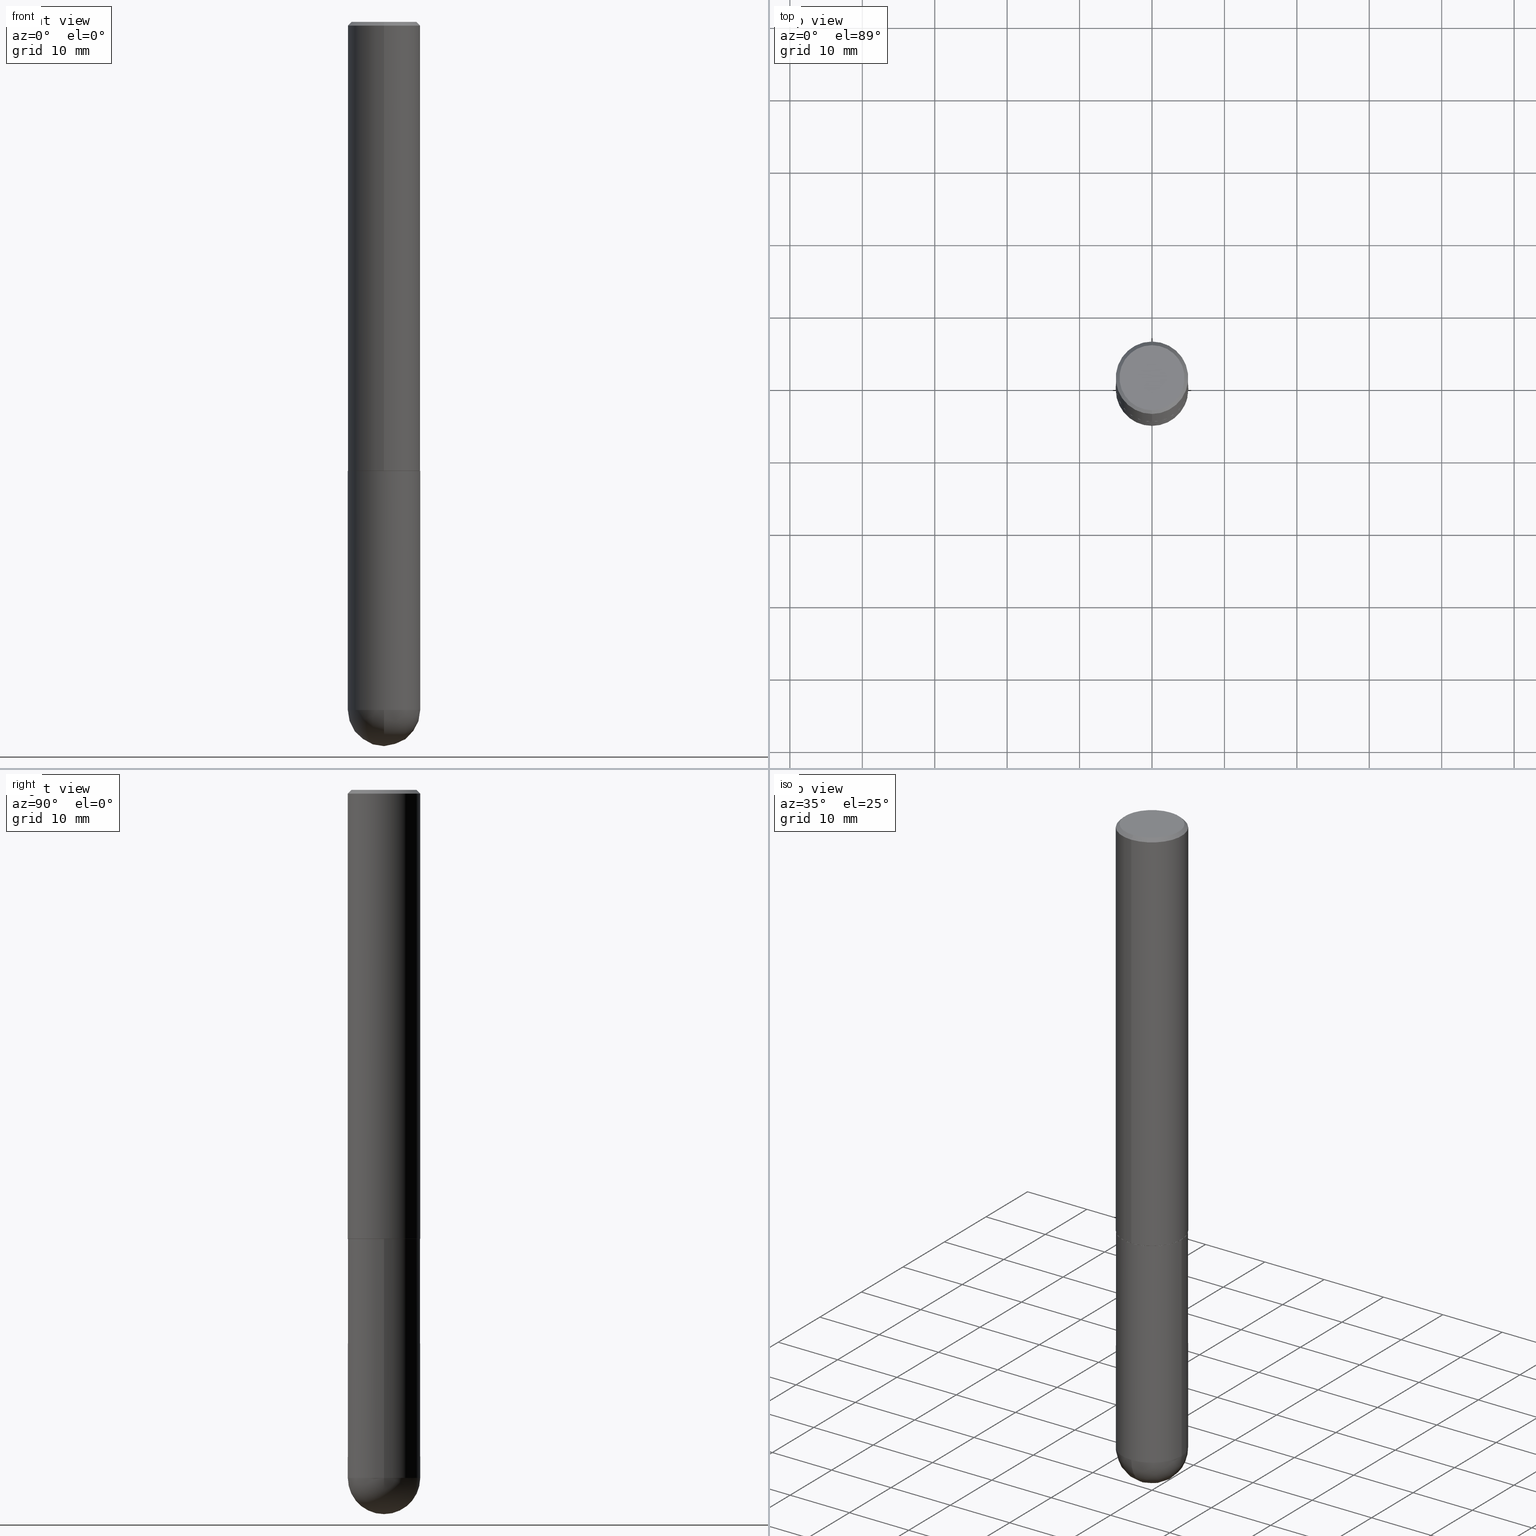
[diagram: canonical four-view strip — front | top / right | iso, engineering-drawing reading convention]
A machine part, canonical four-view strip (front | top / right | iso — engineering-drawing reading convention). The complete STEP part file that produces these views, byte-faithful:
ISO-10303-21;
HEADER;
FILE_DESCRIPTION (( 'STEP AP203' ),
    '1' );
FILE_NAME ('49601.STEP',
    '2024-04-10T12:29:46',
    ( '' ),
    ( '' ),
    'SwSTEP 2.0',
    'SolidWorks 2023',
    '' );
FILE_SCHEMA (( 'CONFIG_CONTROL_DESIGN' ));
ENDSEC;

DATA;
#1 = DATE_TIME_ROLE ( 'classification_date' ) ;
#2 = PERSON_AND_ORGANIZATION_ROLE ( 'design_supplier' ) ;
#3 = PERSON_AND_ORGANIZATION_ROLE ( 'creator' ) ;
#4 = DIRECTION ( 'NONE',  ( -2.444480225679141495E-29, 3.492897042394238758E-15, 1.000000000000000000 ) ) ;
#5 = AXIS2_PLACEMENT_3D ( 'NONE', #78, #106, #140 ) ;
#6 = PRODUCT_DEFINITION_FORMATION_WITH_SPECIFIED_SOURCE ( 'ANY', '', #68, .NOT_KNOWN. ) ;
#7 = CARTESIAN_POINT ( 'NONE',  ( 0.000000000000000000, 0.000000000000000000, 0.000000000000000000 ) ) ;
#8 = CARTESIAN_POINT ( 'NONE',  ( -1.367613240424795443E-15, -0.1958500000000085450, -2.440899999999999181 ) ) ;
#9 = DIRECTION ( 'NONE',  ( -2.444480225679141495E-29, 3.492897042394238758E-15, 1.000000000000000000 ) ) ;
#10 = COORDINATED_UNIVERSAL_TIME_OFFSET ( 5, 0, .BEHIND. ) ;
#11 = EDGE_CURVE ( 'NONE', #60, #61, #139, .T. ) ;
#12 = CARTESIAN_POINT ( 'NONE',  ( -8.144869788625453645E-45, 1.163813529621500407E-30, 3.331943414008428800E-16 ) ) ;
#13 = CARTESIAN_POINT ( 'NONE',  ( 0.000000000000000000, 0.000000000000000000, 0.000000000000000000 ) ) ;
#14 = COORDINATED_UNIVERSAL_TIME_OFFSET ( 5, 0, .BEHIND. ) ;
#15 = EDGE_CURVE ( 'NONE', #23, #303, #208, .T. ) ;
#16 = CONICAL_SURFACE ( 'NONE', #281, 0.1968500000000000527, 0.7853981633974480570 ) ;
#17 = ORIENTED_EDGE ( 'NONE', *, *, #94, .T. ) ;
#18 = DIRECTION ( 'NONE',  ( -6.982962677686265922E-15, -1.000000000000000000, 3.492897042394238758E-15 ) ) ;
#19 = CARTESIAN_POINT ( 'NONE',  ( 1.398703375343789145E-15, 0.1968499999999918093, -2.439900000000000624 ) ) ;
#20 = CIRCLE ( 'NONE', #195, 0.1968500000000003303 ) ;
#21 = AXIS2_PLACEMENT_3D ( 'NONE', #7, #381, #317 ) ;
#22 = DIRECTION ( 'NONE',  ( -6.982962677686265133E-15, -1.000000000000000000, 3.491137977679279029E-15 ) ) ;
#23 = VERTEX_POINT ( 'NONE', #135 ) ;
#24 = CARTESIAN_POINT ( 'NONE',  ( 9.146420155453340551E-29, -1.305866392947419340E-14, -3.740150000000000752 ) ) ;
#25 = ADVANCED_FACE ( 'NONE', ( #228 ), #363, .T. ) ;
#26 = DIRECTION ( 'NONE',  ( -2.444480225679141495E-29, 3.492897042394238758E-15, 1.000000000000000000 ) ) ;
#27 = EDGE_LOOP ( 'NONE', ( #398, #376, #260, #276, #296 ) ) ;
#28 = CIRCLE ( 'NONE', #79, 0.1968500000000000250 ) ;
#29 = AXIS2_PLACEMENT_3D ( 'NONE', #306, #143, #82 ) ;
#30 = CARTESIAN_POINT ( 'NONE',  ( 0.000000000000000000, 0.000000000000000000, 0.000000000000000000 ) ) ;
#31 = ORIENTED_EDGE ( 'NONE', *, *, #43, .T. ) ;
#32 = CIRCLE ( 'NONE', #367, 0.1968500000000001360 ) ;
#33 = ORIENTED_EDGE ( 'NONE', *, *, #400, .T. ) ;
#34 = EDGE_LOOP ( 'NONE', ( #354, #407 ) ) ;
#35 = DIRECTION ( 'NONE',  ( -2.445468806185136597E-29, 3.491481338843145583E-15, 1.000000000000000000 ) ) ;
#36 = MECHANICAL_CONTEXT ( 'NONE', #115, 'mechanical' ) ;
#37 = FACE_OUTER_BOUND ( 'NONE', #405, .T. ) ;
#38 = AXIS2_PLACEMENT_3D ( 'NONE', #24, #235, #176 ) ;
#39 = LOCAL_TIME ( 8, 29, 46.00000000000000000, #282 ) ;
#40 = DIRECTION ( 'NONE',  ( -2.444480225679141495E-29, 3.492897042394238758E-15, 1.000000000000000000 ) ) ;
#41 = DATE_AND_TIME ( #254, #148 ) ;
#42 = CYLINDRICAL_SURFACE ( 'NONE', #147, 0.1968500000000001915 ) ;
#43 = EDGE_CURVE ( 'NONE', #394, #240, #302, .T. ) ;
#44 = DIRECTION ( 'NONE',  ( -6.982962677686265922E-15, -1.000000000000000000, 3.492897042394238758E-15 ) ) ;
#45 = APPROVAL ( #194, 'UNSPECIFIED' ) ;
#46 = CLOSED_SHELL ( 'NONE', ( #380, #25, #356, #410, #156, #396, #70, #314 ) ) ;
#47 = PLANE ( 'NONE',  #375 ) ;
#48 = AXIS2_PLACEMENT_3D ( 'NONE', #257, #389, #103 ) ;
#49 =( CONVERSION_BASED_UNIT ( 'INCH', #202 ) LENGTH_UNIT ( ) NAMED_UNIT ( #298 ) );
#50 = CARTESIAN_POINT ( 'NONE',  ( 4.888960451358293429E-31, -6.985794084788491174E-17, -0.02000000000000004205 ) ) ;
#51 = CARTESIAN_POINT ( 'NONE',  ( 0.1968499999999999694, -1.216510656783075637E-14, -3.740150000000000752 ) ) ;
#52 = ORIENTED_EDGE ( 'NONE', *, *, #373, .F. ) ;
#53 = APPROVAL ( #352, 'UNSPECIFIED' ) ;
#54 = CYLINDRICAL_SURFACE ( 'NONE', #29, 0.1968499999999999694 ) ;
#55 = AXIS2_PLACEMENT_3D ( 'NONE', #50, #109, #22 ) ;
#56 = ORIENTED_EDGE ( 'NONE', *, *, #127, .T. ) ;
#57 = DIRECTION ( 'NONE',  ( 2.444480225679141495E-29, -3.492897042394238758E-15, -1.000000000000000000 ) ) ;
#58 = ORIENTED_EDGE ( 'NONE', *, *, #125, .T. ) ;
#59 = EDGE_CURVE ( 'NONE', #153, #341, #32, .T. ) ;
#60 = VERTEX_POINT ( 'NONE', #19 ) ;
#61 = VERTEX_POINT ( 'NONE', #325 ) ;
#62 = CIRCLE ( 'NONE', #288, 0.1958499999999999963 ) ;
#63 = DIRECTION ( 'NONE',  ( 1.000000000000000000, -6.982962677686262766E-15, 0.000000000000000000 ) ) ;
#64 = APPROVAL_DATE_TIME ( #284, #53 ) ;
#65 = APPROVAL_ROLE ( '' ) ;
#66 = CIRCLE ( 'NONE', #38, 0.1968499999999999694 ) ;
#67 = ORIENTED_EDGE ( 'NONE', *, *, #272, .T. ) ;
#68 = PRODUCT ( '49601', '49601', '', ( #36 ) ) ;
#69 = CARTESIAN_POINT ( 'NONE',  ( 5.966731782860215927E-29, -8.525812390780097403E-15, -2.440900000000000070 ) ) ;
#70 = ADVANCED_FACE ( 'NONE', ( #77 ), #47, .F. ) ;
#71 = LINE ( 'NONE', #121, #262 ) ;
#72 = DIRECTION ( 'NONE',  ( -1.000000000000000000, 6.982962677686265922E-15, -4.883557194083113462E-29 ) ) ;
#73 = DIRECTION ( 'NONE',  ( 5.024295867787975615E-15, 0.7071067811865378028, 0.7071067811865571207 ) ) ;
#74 = CIRCLE ( 'NONE', #184, 0.1968499999999999694 ) ;
#75 = CONICAL_SURFACE ( 'NONE', #113, 0.1968500000000000527, 0.7853981633974480570 ) ;
#76 = CARTESIAN_POINT ( 'NONE',  ( 1.374596203102542200E-15, 0.1968499999999999694, -0.02000000000000072900 ) ) ;
#77 = FACE_OUTER_BOUND ( 'NONE', #34, .T. ) ;
#78 = CARTESIAN_POINT ( 'NONE',  ( 9.146420155453340551E-29, -1.305866392947419340E-14, -3.740150000000000752 ) ) ;
#79 = AXIS2_PLACEMENT_3D ( 'NONE', #338, #179, #304 ) ;
#80 = APPROVAL_PERSON_ORGANIZATION ( #259, #201, #355 ) ;
#81 = DIRECTION ( 'NONE',  ( -2.444480225679141495E-29, 3.492897042394238758E-15, 1.000000000000000000 ) ) ;
#82 = DIRECTION ( 'NONE',  ( 1.000000000000000000, -6.982962677686266711E-15, 4.876176775795935793E-29 ) ) ;
#83 = ORIENTED_EDGE ( 'NONE', *, *, #346, .T. ) ;
#84 = CARTESIAN_POINT ( 'NONE',  ( 1.374596203102601167E-15, 0.1968499999999914762, -2.440900000000000514 ) ) ;
#85 = ADVANCED_FACE ( 'NONE', ( #199 ), #231, .T. ) ;
#86 = AXIS2_PLACEMENT_3D ( 'NONE', #151, #353, #279 ) ;
#87 = APPROVAL_PERSON_ORGANIZATION ( #105, #45, #154 ) ;
#88 = DIRECTION ( 'NONE',  ( -1.000000000000000000, 6.982962677686265922E-15, -4.883557194083113462E-29 ) ) ;
#89 = ORIENTED_EDGE ( 'NONE', *, *, #221, .T. ) ;
#90 = CARTESIAN_POINT ( 'NONE',  ( -1.374596203102542594E-15, -0.1968500000000001915, 6.875767827953065398E-16 ) ) ;
#91 = EDGE_LOOP ( 'NONE', ( #178, #89, #95, #141 ) ) ;
#92 = CARTESIAN_POINT ( 'NONE',  ( 0.1968499999999999694, -1.374596203102541411E-15, 9.598753983154298056E-30 ) ) ;
#93 = APPLICATION_CONTEXT ( 'configuration controlled 3d designs of mechanical parts and assemblies' ) ;
#94 = EDGE_CURVE ( 'NONE', #153, #303, #97, .T. ) ;
#95 = ORIENTED_EDGE ( 'NONE', *, *, #285, .F. ) ;
#96 = CALENDAR_DATE ( 2024, 10, 4 ) ;
#97 = CIRCLE ( 'NONE', #330, 0.1968500000000001360 ) ;
#98 = DIRECTION ( 'NONE',  ( 1.000000000000000000, -6.982962677686269866E-15, 0.000000000000000000 ) ) ;
#99 = EDGE_LOOP ( 'NONE', ( #31, #339, #409, #377 ) ) ;
#100 = DATE_AND_TIME ( #96, #308 ) ;
#101 = FACE_OUTER_BOUND ( 'NONE', #130, .T. ) ;
#102 = DATE_AND_TIME ( #251, #39 ) ;
#103 = DIRECTION ( 'NONE',  ( 1.000000000000000000, -6.982962677686269866E-15, 0.000000000000000000 ) ) ;
#104 = CARTESIAN_POINT ( 'NONE',  ( 5.966731782860215927E-29, -8.525812390780097403E-15, -2.440900000000000070 ) ) ;
#105 = PERSON_AND_ORGANIZATION ( #347, #234 ) ;
#106 = DIRECTION ( 'NONE',  ( -2.445468806185136597E-29, 3.491481338843145583E-15, 1.000000000000000000 ) ) ;
#107 = DATE_AND_TIME ( #261, #331 ) ;
#108 = VERTEX_POINT ( 'NONE', #200 ) ;
#109 = DIRECTION ( 'NONE',  ( -2.444480225679141495E-29, 3.492897042394238758E-15, 1.000000000000000000 ) ) ;
#110 = PRODUCT_DEFINITION_SHAPE ( 'NONE', 'NONE',  #116 ) ;
#111 = CIRCLE ( 'NONE', #152, 0.1968500000000000250 ) ;
#112 = DESIGN_CONTEXT ( 'detailed design', #93, 'design' ) ;
#113 = AXIS2_PLACEMENT_3D ( 'NONE', #333, #57, #229 ) ;
#114 = CARTESIAN_POINT ( 'NONE',  ( 0.1968500000000000250, -9.896953003084774574E-15, -2.440900000000000070 ) ) ;
#115 = APPLICATION_CONTEXT ( 'configuration controlled 3d designs of mechanical parts and assemblies' ) ;
#116 = PRODUCT_DEFINITION ( 'UNKNOWN', '', #6, #112 ) ;
#117 = DIRECTION ( 'NONE',  ( -6.982962677686265922E-15, -1.000000000000000000, 4.184602492209747448E-15 ) ) ;
#118 = VERTEX_POINT ( 'NONE', #323 ) ;
#119 = LINE ( 'NONE', #90, #384 ) ;
#120 = EDGE_CURVE ( 'NONE', #118, #289, #158, .T. ) ;
#121 = CARTESIAN_POINT ( 'NONE',  ( -1.367613240424795443E-15, -0.1958500000000085450, -2.440899999999999181 ) ) ;
#122 = CARTESIAN_POINT ( 'NONE',  ( 4.888960451358293429E-31, -6.985794084788491174E-17, -0.02000000000000004205 ) ) ;
#123 = AXIS2_PLACEMENT_3D ( 'NONE', #84, #402, #370 ) ;
#124 =( GEOMETRIC_REPRESENTATION_CONTEXT ( 3 ) GLOBAL_UNCERTAINTY_ASSIGNED_CONTEXT ( ( #401 ) ) GLOBAL_UNIT_ASSIGNED_CONTEXT ( ( #49, #171, #369 ) ) REPRESENTATION_CONTEXT ( 'NONE', 'WORKASPACE' ) );
#125 = EDGE_CURVE ( 'NONE', #23, #244, #397, .T. ) ;
#126 = APPROVAL_STATUS ( 'not_yet_approved' ) ;
#127 = EDGE_CURVE ( 'NONE', #289, #108, #166, .T. ) ;
#128 = COORDINATED_UNIVERSAL_TIME_OFFSET ( 5, 0, .BEHIND. ) ;
#129 = PRODUCT_RELATED_PRODUCT_CATEGORY ( 'detail', '', ( #68 ) ) ;
#130 = EDGE_LOOP ( 'NONE', ( #209, #211, #67, #174 ) ) ;
#131 = VECTOR ( 'NONE', #299, 39.37007874015748143 ) ;
#132 = DIRECTION ( 'NONE',  ( 2.444480225679141495E-29, -3.492897042394238758E-15, -1.000000000000000000 ) ) ;
#133 = PERSON_AND_ORGANIZATION ( #347, #234 ) ;
#134 = DIRECTION ( 'NONE',  ( -6.982962677686265922E-15, -1.000000000000000000, 4.184602492209747448E-15 ) ) ;
#135 = CARTESIAN_POINT ( 'NONE',  ( -0.1968499999999999694, -9.391806989384456184E-15, -3.740150000000000752 ) ) ;
#136 = COORDINATED_UNIVERSAL_TIME_OFFSET ( 5, 0, .BEHIND. ) ;
#137 = CARTESIAN_POINT ( 'NONE',  ( 9.146420155453340551E-29, -1.305866392947419340E-14, -3.740150000000000752 ) ) ;
#138 = DIRECTION ( 'NONE',  ( -6.982962677686265133E-15, -1.000000000000000000, 3.492897042394238758E-15 ) ) ;
#139 = CIRCLE ( 'NONE', #343, 0.1968500000000003303 ) ;
#140 = DIRECTION ( 'NONE',  ( 1.000000000000000000, -6.982962677686269866E-15, 0.000000000000000000 ) ) ;
#141 = ORIENTED_EDGE ( 'NONE', *, *, #172, .F. ) ;
#142 = DIRECTION ( 'NONE',  ( 1.000000000000000000, -6.982962677686265922E-15, 4.883557194083112340E-29 ) ) ;
#143 = DIRECTION ( 'NONE',  ( -2.445468806185136597E-29, 3.491481338843145583E-15, 1.000000000000000000 ) ) ;
#144 = ORIENTED_EDGE ( 'NONE', *, *, #285, .T. ) ;
#145 = CARTESIAN_POINT ( 'NONE',  ( 1.395150661665018026E-15, 0.1958499999999914754, -2.440900000000000958 ) ) ;
#146 = ORIENTED_EDGE ( 'NONE', *, *, #373, .T. ) ;
#147 = AXIS2_PLACEMENT_3D ( 'NONE', #13, #163, #138 ) ;
#148 = LOCAL_TIME ( 8, 29, 46.00000000000000000, #136 ) ;
#149 = FACE_OUTER_BOUND ( 'NONE', #378, .T. ) ;
#150 = ORIENTED_EDGE ( 'NONE', *, *, #346, .F. ) ;
#151 = CARTESIAN_POINT ( 'NONE',  ( 1.234936949548813829E-15, 0.1768499999999996741, -4.511216712469985980E-16 ) ) ;
#152 = AXIS2_PLACEMENT_3D ( 'NONE', #192, #35, #63 ) ;
#153 = VERTEX_POINT ( 'NONE', #197 ) ;
#154 = APPROVAL_ROLE ( '' ) ;
#155 = DIRECTION ( 'NONE',  ( -2.444480225679141495E-29, 3.492897042394238758E-15, 1.000000000000000000 ) ) ;
#156 = ADVANCED_FACE ( 'NONE', ( #223 ), #42, .T. ) ;
#157 = DATE_TIME_ROLE ( 'creation_date' ) ;
#158 = CIRCLE ( 'NONE', #253, 0.1768499999999996741 ) ;
#159 = LINE ( 'NONE', #246, #316 ) ;
#160 = EDGE_LOOP ( 'NONE', ( #385, #17, #191, #318 ) ) ;
#161 = PERSON_AND_ORGANIZATION ( #347, #234 ) ;
#162 = CARTESIAN_POINT ( 'NONE',  ( 5.964287302634537555E-29, -8.522319493737701952E-15, -2.439899999999999736 ) ) ;
#163 = DIRECTION ( 'NONE',  ( -2.444480225679141495E-29, 3.492897042394238758E-15, 1.000000000000000000 ) ) ;
#164 = APPROVAL_DATE_TIME ( #107, #201 ) ;
#165 = EDGE_CURVE ( 'NONE', #108, #182, #252, .T. ) ;
#166 = LINE ( 'NONE', #76, #131 ) ;
#167 =( LENGTH_UNIT ( ) NAMED_UNIT ( * ) SI_UNIT ( $, .METRE. ) );
#168 = AXIS2_PLACEMENT_3D ( 'NONE', #258, #300, #390 ) ;
#169 = LOCAL_TIME ( 8, 29, 46.00000000000000000, #128 ) ;
#170 = DIRECTION ( 'NONE',  ( -2.445468806185136877E-29, 3.491481338843145188E-15, 1.000000000000000000 ) ) ;
#171 =( NAMED_UNIT ( * ) PLANE_ANGLE_UNIT ( ) SI_UNIT ( $, .RADIAN. ) );
#172 = EDGE_CURVE ( 'NONE', #61, #182, #119, .T. ) ;
#173 = CARTESIAN_POINT ( 'NONE',  ( 5.964287302634537555E-29, -8.522319493737701952E-15, -2.439899999999999736 ) ) ;
#174 = ORIENTED_EDGE ( 'NONE', *, *, #11, .F. ) ;
#175 = AXIS2_PLACEMENT_3D ( 'NONE', #12, #291, #287 ) ;
#176 = DIRECTION ( 'NONE',  ( 1.000000000000000000, -6.982962677686269866E-15, 0.000000000000000000 ) ) ;
#177 = ADVANCED_FACE ( 'NONE', ( #149 ), #267, .F. ) ;
#178 = ORIENTED_EDGE ( 'NONE', *, *, #270, .T. ) ;
#179 = DIRECTION ( 'NONE',  ( -2.445468806185136597E-29, 3.491481338843145583E-15, 1.000000000000000000 ) ) ;
#180 = ORIENTED_EDGE ( 'NONE', *, *, #172, .T. ) ;
#181 = ADVANCED_FACE ( 'NONE', ( #301 ), #404, .T. ) ;
#182 = VERTEX_POINT ( 'NONE', #371 ) ;
#183 = DIRECTION ( 'NONE',  ( -6.982962677686265133E-15, -1.000000000000000000, 3.491137977679279029E-15 ) ) ;
#184 = AXIS2_PLACEMENT_3D ( 'NONE', #137, #326, #98 ) ;
#185 = ADVANCED_FACE ( 'NONE', ( #406 ), #54, .T. ) ;
#186 = CC_DESIGN_SECURITY_CLASSIFICATION ( #203, ( #6 ) ) ;
#187 = PERSON_AND_ORGANIZATION ( #347, #234 ) ;
#188 = EDGE_LOOP ( 'NONE', ( #411, #366, #180, #218 ) ) ;
#189 = CALENDAR_DATE ( 2024, 10, 4 ) ;
#190 = DIRECTION ( 'NONE',  ( -2.444480225679141495E-29, 3.492897042394238758E-15, 1.000000000000000000 ) ) ;
#191 = ORIENTED_EDGE ( 'NONE', *, *, #15, .F. ) ;
#192 = CARTESIAN_POINT ( 'NONE',  ( 5.969144809017299038E-29, -8.522356799982232966E-15, -2.440900000000000070 ) ) ;
#193 = DIRECTION ( 'NONE',  ( -7.105427357601001070E-15, -1.000000000000000000, 0.000000000000000000 ) ) ;
#194 = APPROVAL_STATUS ( 'not_yet_approved' ) ;
#195 = AXIS2_PLACEMENT_3D ( 'NONE', #162, #4, #392 ) ;
#196 = DIRECTION ( 'NONE',  ( -4.851104656540962697E-15, -0.7071067811865497932, -0.7071067811865452413 ) ) ;
#197 = CARTESIAN_POINT ( 'NONE',  ( 9.305107886238245984E-29, -1.420809081304490838E-14, -3.937000000000000721 ) ) ;
#198 = FACE_OUTER_BOUND ( 'NONE', #374, .T. ) ;
#199 = FACE_OUTER_BOUND ( 'NONE', #160, .T. ) ;
#200 = CARTESIAN_POINT ( 'NONE',  ( 1.374596203102542200E-15, 0.1968499999999999694, -0.02000000000000072900 ) ) ;
#201 = APPROVAL ( #126, 'UNSPECIFIED' ) ;
#202 = LENGTH_MEASURE_WITH_UNIT ( LENGTH_MEASURE( 0.02539999999999999897 ), #167 );
#203 = SECURITY_CLASSIFICATION ( '', '', #348 ) ;
#204 = DIRECTION ( 'NONE',  ( -1.000000000000000000, 7.105427357601001070E-15, -4.926315508542082329E-29 ) ) ;
#205 = CARTESIAN_POINT ( 'NONE',  ( 5.966731782860215927E-29, -8.525812390780097403E-15, -2.440900000000000070 ) ) ;
#206 = CARTESIAN_POINT ( 'NONE',  ( 1.398703375343758182E-15, 0.1968500000000001915, -6.875767827953065398E-16 ) ) ;
#207 = VERTEX_POINT ( 'NONE', #114 ) ;
#208 = CIRCLE ( 'NONE', #5, 0.1968499999999999694 ) ;
#209 = ORIENTED_EDGE ( 'NONE', *, *, #328, .F. ) ;
#210 = FACE_OUTER_BOUND ( 'NONE', #403, .T. ) ;
#211 = ORIENTED_EDGE ( 'NONE', *, *, #238, .T. ) ;
#212 = EDGE_CURVE ( 'NONE', #244, #207, #28, .T. ) ;
#213 = ORIENTED_EDGE ( 'NONE', *, *, #59, .T. ) ;
#214 = DIRECTION ( 'NONE',  ( -2.445468806185136877E-29, 3.491481338843145188E-15, 1.000000000000000000 ) ) ;
#215 = AXIS2_PLACEMENT_3D ( 'NONE', #30, #277, #236 ) ;
#216 = EDGE_CURVE ( 'NONE', #303, #264, #66, .T. ) ;
#217 = APPLICATION_PROTOCOL_DEFINITION ( 'international standard', 'config_control_design', 1994, #93 ) ;
#218 = ORIENTED_EDGE ( 'NONE', *, *, #165, .F. ) ;
#219 = CONICAL_SURFACE ( 'NONE', #290, 0.1958499999999999963, 0.7853981633974311816 ) ;
#220 = CC_DESIGN_APPROVAL ( #45, ( #6 ) ) ;
#221 = EDGE_CURVE ( 'NONE', #60, #108, #271, .T. ) ;
#222 = CARTESIAN_POINT ( 'NONE',  ( 5.966731782860215927E-29, -8.525812390780097403E-15, -2.440900000000000070 ) ) ;
#223 = FACE_OUTER_BOUND ( 'NONE', #188, .T. ) ;
#224 = CARTESIAN_POINT ( 'NONE',  ( 1.304766576325678113E-15, 0.1768499999999996741, -2.845245005465771333E-16 ) ) ;
#225 = CARTESIAN_POINT ( 'NONE',  ( -8.144869788625453645E-45, 1.163813529621500407E-30, 3.331943414008428800E-16 ) ) ;
#226 = VECTOR ( 'NONE', #196, 39.37007874015748143 ) ;
#227 = DIRECTION ( 'NONE',  ( 6.982962677686265133E-15, 1.000000000000000000, -3.491137977679279029E-15 ) ) ;
#228 = FACE_OUTER_BOUND ( 'NONE', #91, .T. ) ;
#229 = DIRECTION ( 'NONE',  ( 6.982962677686265133E-15, 1.000000000000000000, -3.491137977679279029E-15 ) ) ;
#230 = CC_DESIGN_PERSON_AND_ORGANIZATION_ASSIGNMENT ( #293, #2, ( #6 ) ) ;
#231 = SPHERICAL_SURFACE ( 'NONE', #273, 0.1968500000000001360 ) ;
#232 = DIRECTION ( 'NONE',  ( -2.444480225679141214E-29, 3.492897042394238758E-15, 1.000000000000000000 ) ) ;
#233 = AXIS2_PLACEMENT_3D ( 'NONE', #295, #9, #292 ) ;
#234 = ORGANIZATION ( 'UNSPECIFIED', 'UNSPECIFIED', '' ) ;
#235 = DIRECTION ( 'NONE',  ( -2.445468806185136597E-29, 3.491481338843145583E-15, 1.000000000000000000 ) ) ;
#236 = DIRECTION ( 'NONE',  ( 1.000000000000000000, -6.982962677686266711E-15, 4.876176775795935793E-29 ) ) ;
#237 = CC_DESIGN_PERSON_AND_ORGANIZATION_ASSIGNMENT ( #319, #386, ( #203 ) ) ;
#238 = EDGE_CURVE ( 'NONE', #240, #394, #62, .T. ) ;
#239 = CARTESIAN_POINT ( 'NONE',  ( 8.815300377539453183E-29, -1.353284629761424370E-14, -3.740150000000000308 ) ) ;
#240 = VERTEX_POINT ( 'NONE', #145 ) ;
#241 = MANIFOLD_SOLID_BREP ( 'Body-Move/Copy2[1]', #408 ) ;
#242 = VECTOR ( 'NONE', #214, 39.37007874015748143 ) ;
#243 = ORIENTED_EDGE ( 'NONE', *, *, #216, .F. ) ;
#244 = VERTEX_POINT ( 'NONE', #334 ) ;
#245 = MANIFOLD_SOLID_BREP ( 'Body-Move/Copy2[2]', #46 ) ;
#246 = CARTESIAN_POINT ( 'NONE',  ( 1.391597947986215747E-15, 0.1958499999999914754, -2.440900000000000958 ) ) ;
#247 = ORIENTED_EDGE ( 'NONE', *, *, #345, .T. ) ;
#248 = ADVANCED_FACE ( 'NONE', ( #210 ), #335, .T. ) ;
#249 = CIRCLE ( 'NONE', #393, 0.1968500000000000527 ) ;
#250 = APPLICATION_PROTOCOL_DEFINITION ( 'international standard', 'config_control_design', 1994, #115 ) ;
#251 = CALENDAR_DATE ( 2024, 10, 4 ) ;
#252 = CIRCLE ( 'NONE', #55, 0.1968500000000000527 ) ;
#253 = AXIS2_PLACEMENT_3D ( 'NONE', #225, #263, #44 ) ;
#254 = CALENDAR_DATE ( 2024, 10, 4 ) ;
#255 = DIRECTION ( 'NONE',  ( -6.982962677686265922E-15, -1.000000000000000000, 4.184602492209747448E-15 ) ) ;
#256 = CC_DESIGN_PERSON_AND_ORGANIZATION_ASSIGNMENT ( #133, #388, ( #68 ) ) ;
#257 = CARTESIAN_POINT ( 'NONE',  ( 9.146420155453340551E-29, -1.305866392947419340E-14, -3.740150000000000752 ) ) ;
#258 = CARTESIAN_POINT ( 'NONE',  ( 5.966731782860215927E-29, -8.525812390780097403E-15, -2.440900000000000070 ) ) ;
#259 = PERSON_AND_ORGANIZATION ( #347, #234 ) ;
#260 = ORIENTED_EDGE ( 'NONE', *, *, #216, .T. ) ;
#261 = CALENDAR_DATE ( 2024, 10, 4 ) ;
#262 = VECTOR ( 'NONE', #359, 39.37007874015748854 ) ;
#263 = DIRECTION ( 'NONE',  ( -2.444480225679141495E-29, 3.492897042394238758E-15, 1.000000000000000000 ) ) ;
#264 = VERTEX_POINT ( 'NONE', #51 ) ;
#265 = CARTESIAN_POINT ( 'NONE',  ( 8.815300377539453183E-29, -1.353284629761424370E-14, -3.740150000000000308 ) ) ;
#266 = AXIS2_PLACEMENT_3D ( 'NONE', #239, #88, #340 ) ;
#267 = PLANE ( 'NONE',  #123 ) ;
#268 = ORIENTED_EDGE ( 'NONE', *, *, #165, .T. ) ;
#269 = FACE_OUTER_BOUND ( 'NONE', #372, .T. ) ;
#270 = EDGE_CURVE ( 'NONE', #61, #60, #20, .T. ) ;
#271 = LINE ( 'NONE', #206, #379 ) ;
#272 = EDGE_CURVE ( 'NONE', #394, #61, #71, .T. ) ;
#273 = AXIS2_PLACEMENT_3D ( 'NONE', #327, #72, #332 ) ;
#274 = CC_DESIGN_DATE_AND_TIME_ASSIGNMENT ( #102, #157, ( #116 ) ) ;
#275 = APPROVAL_PERSON_ORGANIZATION ( #187, #53, #65 ) ;
#276 = ORIENTED_EDGE ( 'NONE', *, *, #364, .T. ) ;
#277 = DIRECTION ( 'NONE',  ( -2.445468806185136597E-29, 3.491481338843145583E-15, 1.000000000000000000 ) ) ;
#278 = ORIENTED_EDGE ( 'NONE', *, *, #120, .T. ) ;
#279 = DIRECTION ( 'NONE',  ( 6.982962677686265922E-15, 1.000000000000000000, -3.492897042394238758E-15 ) ) ;
#280 = EDGE_CURVE ( 'NONE', #207, #244, #111, .T. ) ;
#281 = AXIS2_PLACEMENT_3D ( 'NONE', #122, #132, #227 ) ;
#282 = COORDINATED_UNIVERSAL_TIME_OFFSET ( 5, 0, .BEHIND. ) ;
#283 = ORIENTED_EDGE ( 'NONE', *, *, #94, .F. ) ;
#284 = DATE_AND_TIME ( #189, #169 ) ;
#285 = EDGE_CURVE ( 'NONE', #182, #108, #249, .T. ) ;
#286 = PERSON_AND_ORGANIZATION ( #347, #234 ) ;
#287 = DIRECTION ( 'NONE',  ( -6.982962677686265922E-15, -1.000000000000000000, 3.492897042394238758E-15 ) ) ;
#288 = AXIS2_PLACEMENT_3D ( 'NONE', #205, #26, #117 ) ;
#289 = VERTEX_POINT ( 'NONE', #224 ) ;
#290 = AXIS2_PLACEMENT_3D ( 'NONE', #222, #357, #134 ) ;
#291 = DIRECTION ( 'NONE',  ( -2.444480225679141495E-29, 3.492897042394238758E-15, 1.000000000000000000 ) ) ;
#292 = DIRECTION ( 'NONE',  ( -6.982962677686265133E-15, -1.000000000000000000, 3.492897042394238758E-15 ) ) ;
#293 = PERSON_AND_ORGANIZATION ( #347, #234 ) ;
#294 = CARTESIAN_POINT ( 'NONE',  ( 1.374596203102631736E-15, 0.1968499999999867855, -3.740150000000001196 ) ) ;
#295 = CARTESIAN_POINT ( 'NONE',  ( 0.000000000000000000, 0.000000000000000000, 0.000000000000000000 ) ) ;
#296 = ORIENTED_EDGE ( 'NONE', *, *, #212, .F. ) ;
#297 = AXIS2_PLACEMENT_3D ( 'NONE', #69, #190, #255 ) ;
#298 = DIMENSIONAL_EXPONENTS ( 1.000000000000000000, 0.000000000000000000, 0.000000000000000000, 0.000000000000000000, 0.000000000000000000, 0.000000000000000000, 0.000000000000000000 ) ;
#299 = DIRECTION ( 'NONE',  ( 4.937700262164546464E-15, 0.7071067811865449082, -0.7071067811865501263 ) ) ;
#300 = DIRECTION ( 'NONE',  ( -2.444480225679141495E-29, 3.492897042394238758E-15, 1.000000000000000000 ) ) ;
#301 = FACE_OUTER_BOUND ( 'NONE', #27, .T. ) ;
#302 = CIRCLE ( 'NONE', #168, 0.1958499999999999963 ) ;
#303 = VERTEX_POINT ( 'NONE', #387 ) ;
#304 = DIRECTION ( 'NONE',  ( 1.000000000000000000, -6.982962677686262766E-15, 0.000000000000000000 ) ) ;
#305 = ORIENTED_EDGE ( 'NONE', *, *, #212, .T. ) ;
#306 = CARTESIAN_POINT ( 'NONE',  ( 0.000000000000000000, 0.000000000000000000, 0.000000000000000000 ) ) ;
#307 = VECTOR ( 'NONE', #170, 39.37007874015748143 ) ;
#308 = LOCAL_TIME ( 8, 29, 46.00000000000000000, #10 ) ;
#309 = DIRECTION ( 'NONE',  ( -2.444480225679141495E-29, 3.492897042394238758E-15, 1.000000000000000000 ) ) ;
#310 = ORIENTED_EDGE ( 'NONE', *, *, #345, .F. ) ;
#311 = ORIENTED_EDGE ( 'NONE', *, *, #280, .F. ) ;
#312 = ADVANCED_BREP_SHAPE_REPRESENTATION ( '49601', ( #241, #245, #21 ), #124 ) ;
#313 = CC_DESIGN_PERSON_AND_ORGANIZATION_ASSIGNMENT ( #161, #3, ( #6 ) ) ;
#314 = ADVANCED_FACE ( 'NONE', ( #37 ), #320, .F. ) ;
#315 = PERSON_AND_ORGANIZATION_ROLE ( 'creator' ) ;
#316 = VECTOR ( 'NONE', #73, 39.37007874015748854 ) ;
#317 = DIRECTION ( 'NONE',  ( 1.000000000000000000, 0.000000000000000000, 0.000000000000000000 ) ) ;
#318 = ORIENTED_EDGE ( 'NONE', *, *, #400, .F. ) ;
#319 = PERSON_AND_ORGANIZATION ( #347, #234 ) ;
#320 = PLANE ( 'NONE',  #86 ) ;
#321 = EDGE_LOOP ( 'NONE', ( #33, #58, #311, #350, #247 ) ) ;
#322 = CARTESIAN_POINT ( 'NONE',  ( 4.888960451358293429E-31, -6.985794084788491174E-17, -0.02000000000000004205 ) ) ;
#323 = CARTESIAN_POINT ( 'NONE',  ( -1.281884050883609506E-15, -0.1768499999999996741, 9.509131833482628441E-16 ) ) ;
#324 = CC_DESIGN_APPROVAL ( #201, ( #203 ) ) ;
#325 = CARTESIAN_POINT ( 'NONE',  ( -1.374596203102484021E-15, -0.1968500000000088512, -2.439899999999998847 ) ) ;
#326 = DIRECTION ( 'NONE',  ( -2.445468806185136597E-29, 3.491481338843145583E-15, 1.000000000000000000 ) ) ;
#327 = CARTESIAN_POINT ( 'NONE',  ( 8.815300377539453183E-29, -1.353284629761424370E-14, -3.740150000000000308 ) ) ;
#328 = EDGE_CURVE ( 'NONE', #240, #60, #159, .T. ) ;
#329 = CARTESIAN_POINT ( 'NONE',  ( -0.1968499999999999694, 1.398703375343756999E-15, -9.682923725166782276E-30 ) ) ;
#330 = AXIS2_PLACEMENT_3D ( 'NONE', #361, #204, #193 ) ;
#331 = LOCAL_TIME ( 8, 29, 46.00000000000000000, #14 ) ;
#332 = DIRECTION ( 'NONE',  ( 6.982962677686265922E-15, 1.000000000000000000, -2.775563112689114723E-15 ) ) ;
#333 = CARTESIAN_POINT ( 'NONE',  ( 4.888960451358293429E-31, -6.985794084788491174E-17, -0.02000000000000004205 ) ) ;
#334 = CARTESIAN_POINT ( 'NONE',  ( -0.1968500000000000250, -9.391806989384456184E-15, -2.440900000000000070 ) ) ;
#335 = SPHERICAL_SURFACE ( 'NONE', #266, 0.1968500000000001360 ) ;
#336 = ORIENTED_EDGE ( 'NONE', *, *, #120, .F. ) ;
#337 = CONICAL_SURFACE ( 'NONE', #297, 0.1958499999999999963, 0.7853981633974311816 ) ;
#338 = CARTESIAN_POINT ( 'NONE',  ( 5.969144809017299038E-29, -8.522356799982232966E-15, -2.440900000000000070 ) ) ;
#339 = ORIENTED_EDGE ( 'NONE', *, *, #328, .T. ) ;
#340 = DIRECTION ( 'NONE',  ( 6.982962677686265922E-15, 1.000000000000000000, -2.775563112689114723E-15 ) ) ;
#341 = VERTEX_POINT ( 'NONE', #294 ) ;
#342 = ORIENTED_EDGE ( 'NONE', *, *, #280, .T. ) ;
#343 = AXIS2_PLACEMENT_3D ( 'NONE', #173, #40, #365 ) ;
#344 = FACE_OUTER_BOUND ( 'NONE', #99, .T. ) ;
#345 = EDGE_CURVE ( 'NONE', #264, #341, #74, .T. ) ;
#346 = EDGE_CURVE ( 'NONE', #289, #118, #360, .T. ) ;
#347 = PERSON ( 'UNSPECIFIED', 'UNSPECIFIED', 'UNSPECIFIED', ('UNSPECIFIED'), ('UNSPECIFIED'), ('UNSPECIFIED') ) ;
#348 = SECURITY_CLASSIFICATION_LEVEL ( 'unclassified' ) ;
#349 = CIRCLE ( 'NONE', #48, 0.1968499999999999694 ) ;
#350 = ORIENTED_EDGE ( 'NONE', *, *, #364, .F. ) ;
#351 = CC_DESIGN_DATE_AND_TIME_ASSIGNMENT ( #100, #1, ( #203 ) ) ;
#352 = APPROVAL_STATUS ( 'not_yet_approved' ) ;
#353 = DIRECTION ( 'NONE',  ( 2.444480225679141214E-29, -3.492897042394238758E-15, -1.000000000000000000 ) ) ;
#354 = ORIENTED_EDGE ( 'NONE', *, *, #43, .F. ) ;
#355 = APPROVAL_ROLE ( '' ) ;
#356 = ADVANCED_FACE ( 'NONE', ( #198 ), #16, .T. ) ;
#357 = DIRECTION ( 'NONE',  ( -2.444480225679141495E-29, 3.492897042394238758E-15, 1.000000000000000000 ) ) ;
#358 = DIRECTION ( 'NONE',  ( 6.982962677686265922E-15, 1.000000000000000000, 0.000000000000000000 ) ) ;
#359 = DIRECTION ( 'NONE',  ( -4.937700262164462845E-15, -0.7071067811865329178, 0.7071067811865620056 ) ) ;
#360 = CIRCLE ( 'NONE', #175, 0.1768499999999996741 ) ;
#361 = CARTESIAN_POINT ( 'NONE',  ( 8.815300377539453183E-29, -1.353284629761424370E-14, -3.740150000000000308 ) ) ;
#362 = LINE ( 'NONE', #92, #242 ) ;
#363 = CYLINDRICAL_SURFACE ( 'NONE', #233, 0.1968500000000001915 ) ;
#364 = EDGE_CURVE ( 'NONE', #264, #207, #362, .T. ) ;
#365 = DIRECTION ( 'NONE',  ( -6.982962677686265133E-15, -1.000000000000000000, 4.163344669033668535E-15 ) ) ;
#366 = ORIENTED_EDGE ( 'NONE', *, *, #11, .T. ) ;
#367 = AXIS2_PLACEMENT_3D ( 'NONE', #265, #142, #358 ) ;
#368 = CC_DESIGN_APPROVAL ( #53, ( #116 ) ) ;
#369 =( NAMED_UNIT ( * ) SI_UNIT ( $, .STERADIAN. ) SOLID_ANGLE_UNIT ( ) );
#370 = DIRECTION ( 'NONE',  ( -1.000000000000000000, 6.982962677686265922E-15, -4.876176775795935793E-29 ) ) ;
#371 = CARTESIAN_POINT ( 'NONE',  ( -1.350489030861325626E-15, -0.1968500000000001082, -0.01999999999999935510 ) ) ;
#372 = EDGE_LOOP ( 'NONE', ( #52, #150, #56, #268 ) ) ;
#373 = EDGE_CURVE ( 'NONE', #118, #182, #383, .T. ) ;
#374 = EDGE_LOOP ( 'NONE', ( #336, #146, #144, #399 ) ) ;
#375 = AXIS2_PLACEMENT_3D ( 'NONE', #104, #232, #18 ) ;
#376 = ORIENTED_EDGE ( 'NONE', *, *, #15, .T. ) ;
#377 = ORIENTED_EDGE ( 'NONE', *, *, #272, .F. ) ;
#378 = EDGE_LOOP ( 'NONE', ( #342, #305 ) ) ;
#379 = VECTOR ( 'NONE', #81, 39.37007874015748143 ) ;
#380 = ADVANCED_FACE ( 'NONE', ( #344 ), #337, .T. ) ;
#381 = DIRECTION ( 'NONE',  ( 0.000000000000000000, 0.000000000000000000, 1.000000000000000000 ) ) ;
#382 = APPROVAL_DATE_TIME ( #41, #45 ) ;
#383 = LINE ( 'NONE', #412, #226 ) ;
#384 = VECTOR ( 'NONE', #309, 39.37007874015748143 ) ;
#385 = ORIENTED_EDGE ( 'NONE', *, *, #59, .F. ) ;
#386 = PERSON_AND_ORGANIZATION_ROLE ( 'classification_officer' ) ;
#387 = CARTESIAN_POINT ( 'NONE',  ( -1.398703375343667858E-15, -0.1968500000000133754, -3.740150000000000308 ) ) ;
#388 = PERSON_AND_ORGANIZATION_ROLE ( 'design_owner' ) ;
#389 = DIRECTION ( 'NONE',  ( -2.445468806185136597E-29, 3.491481338843145583E-15, 1.000000000000000000 ) ) ;
#390 = DIRECTION ( 'NONE',  ( -6.982962677686265922E-15, -1.000000000000000000, 4.184602492209747448E-15 ) ) ;
#391 = CC_DESIGN_PERSON_AND_ORGANIZATION_ASSIGNMENT ( #286, #315, ( #116 ) ) ;
#392 = DIRECTION ( 'NONE',  ( -6.982962677686265133E-15, -1.000000000000000000, 4.163344669033668535E-15 ) ) ;
#393 = AXIS2_PLACEMENT_3D ( 'NONE', #322, #155, #183 ) ;
#394 = VERTEX_POINT ( 'NONE', #8 ) ;
#395 = SHAPE_DEFINITION_REPRESENTATION ( #110, #312 ) ;
#396 = ADVANCED_FACE ( 'NONE', ( #101 ), #219, .T. ) ;
#397 = LINE ( 'NONE', #329, #307 ) ;
#398 = ORIENTED_EDGE ( 'NONE', *, *, #125, .F. ) ;
#399 = ORIENTED_EDGE ( 'NONE', *, *, #127, .F. ) ;
#400 = EDGE_CURVE ( 'NONE', #341, #23, #349, .T. ) ;
#401 = UNCERTAINTY_MEASURE_WITH_UNIT (LENGTH_MEASURE( 1.000000000000000082E-05 ), #49, 'distance_accuracy_value', 'NONE');
#402 = DIRECTION ( 'NONE',  ( 2.438088387897960049E-29, -3.491481338843145188E-15, -1.000000000000000000 ) ) ;
#403 = EDGE_LOOP ( 'NONE', ( #283, #213, #310, #243 ) ) ;
#404 = CYLINDRICAL_SURFACE ( 'NONE', #215, 0.1968499999999999694 ) ;
#405 = EDGE_LOOP ( 'NONE', ( #83, #278 ) ) ;
#406 = FACE_OUTER_BOUND ( 'NONE', #321, .T. ) ;
#407 = ORIENTED_EDGE ( 'NONE', *, *, #238, .F. ) ;
#408 = CLOSED_SHELL ( 'NONE', ( #185, #85, #248, #177, #181 ) ) ;
#409 = ORIENTED_EDGE ( 'NONE', *, *, #270, .F. ) ;
#410 = ADVANCED_FACE ( 'NONE', ( #269 ), #75, .T. ) ;
#411 = ORIENTED_EDGE ( 'NONE', *, *, #221, .F. ) ;
#412 = CARTESIAN_POINT ( 'NONE',  ( -1.350489030861325626E-15, -0.1968500000000001082, -0.01999999999999935510 ) ) ;
ENDSEC;
END-ISO-10303-21;
